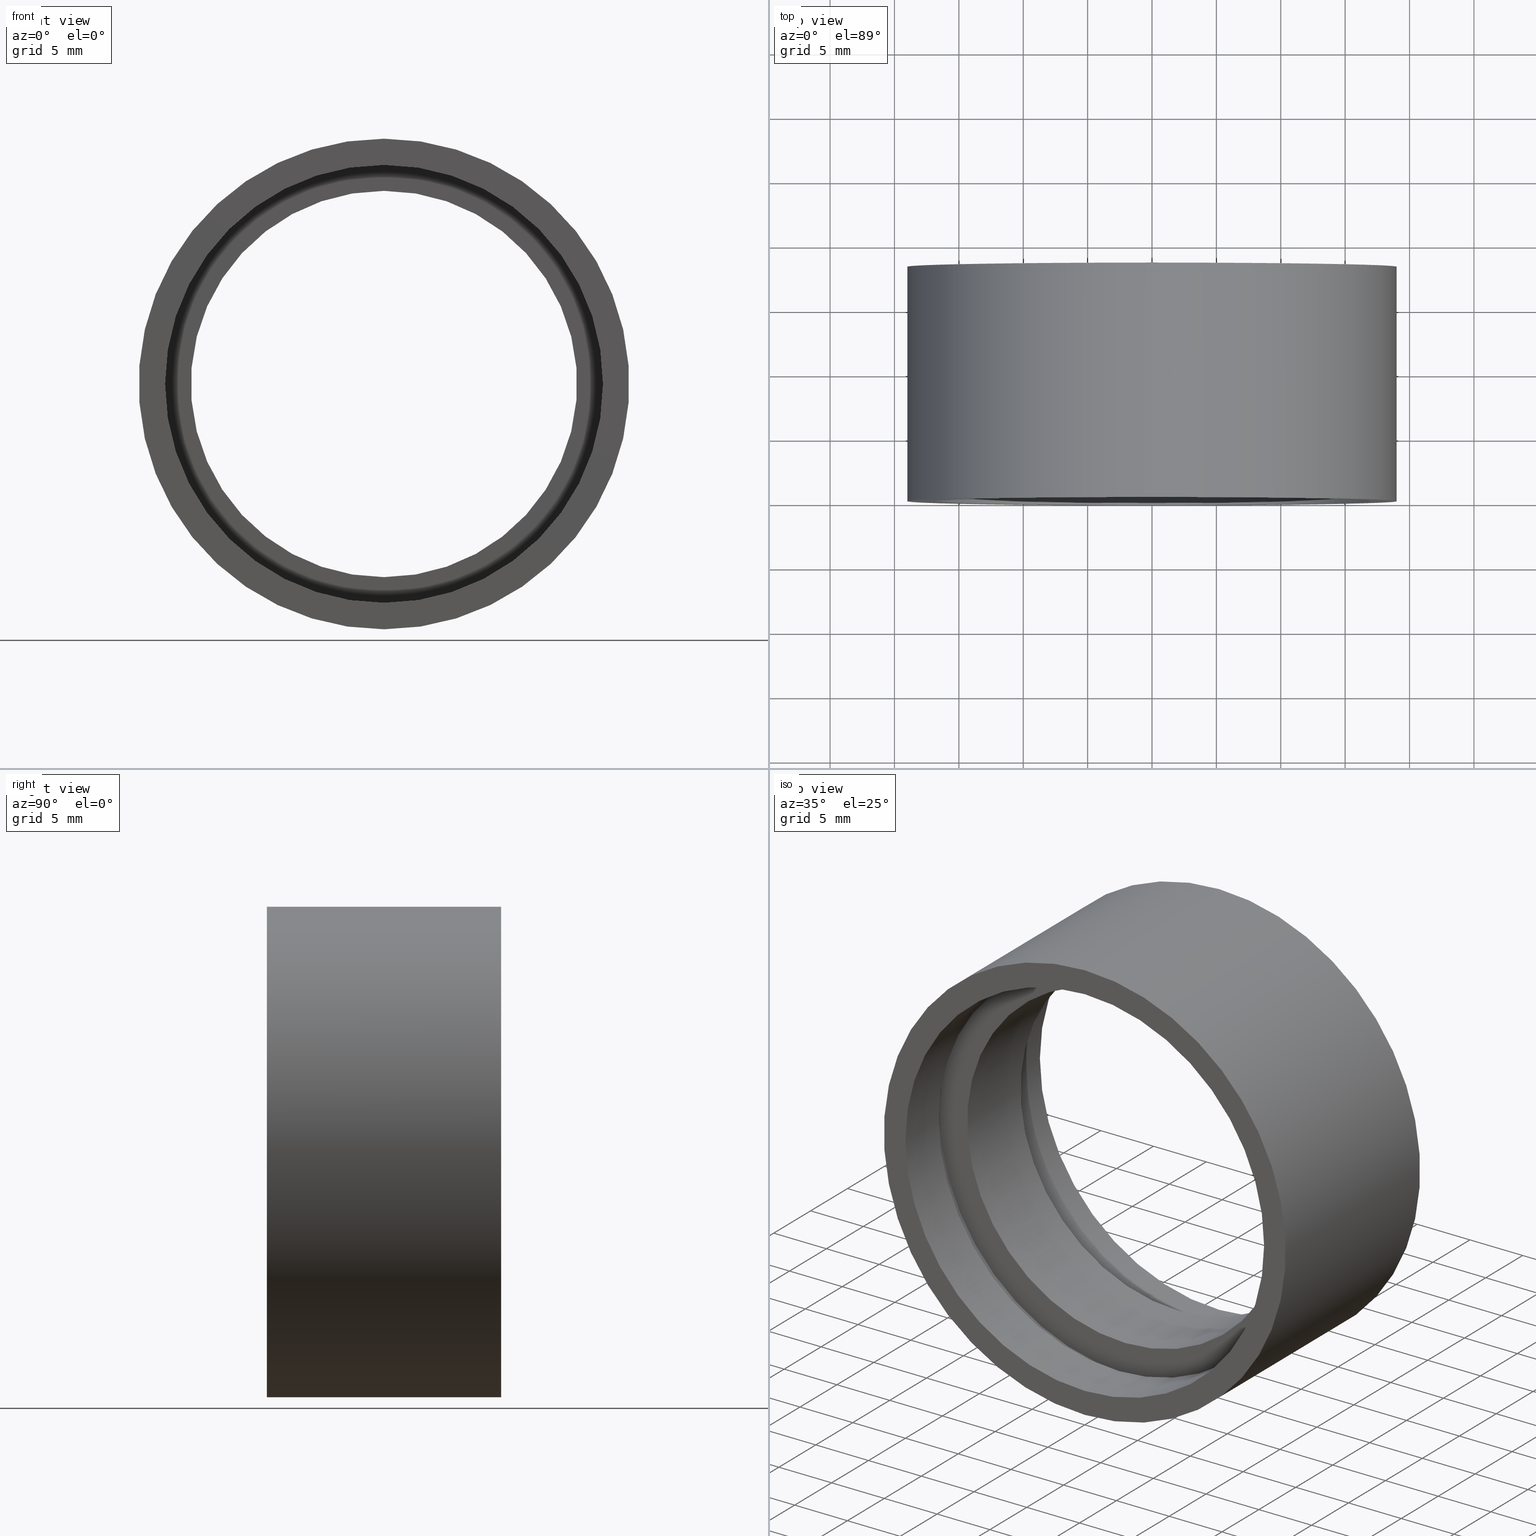
[diagram: canonical four-view strip — front | top / right | iso, engineering-drawing reading convention]
A machine part, canonical four-view strip (front | top / right | iso — engineering-drawing reading convention). The complete STEP part file that produces these views, byte-faithful:
ISO-10303-21;
HEADER;
FILE_DESCRIPTION (( 'STEP AP214' ),
    '1' );
FILE_NAME ('503043.STEP',
    '2019-09-06T03:19:14',
    ( '' ),
    ( '' ),
    'SwSTEP 2.0',
    'SolidWorks 2016',
    '' );
FILE_SCHEMA (( 'AUTOMOTIVE_DESIGN' ));
ENDSEC;

DATA;
#1 = CARTESIAN_POINT ( 'NONE',  ( 0.0000000000000000000, 4.499999999999976000, 17.60000000000002300 ) ) ;
#2 = AXIS2_PLACEMENT_3D ( 'NONE', #289, #621, #475 ) ;
#3 = ORIENTED_EDGE ( 'NONE', *, *, #343, .F. ) ;
#4 = VECTOR ( 'NONE', #358, 1000.000000000000000 ) ;
#5 = DIRECTION ( 'NONE',  ( 0.0000000000000000000, 0.0000000000000000000, 1.000000000000000000 ) ) ;
#6 = AXIS2_PLACEMENT_3D ( 'NONE', #35, #410, #84 ) ;
#7 = EDGE_CURVE ( 'NONE', #624, #437, #297, .T. ) ;
#8 = CLOSED_SHELL ( 'NONE', ( #529, #375, #27, #333, #190, #525, #285, #612, #574, #616, #335, #420, #329, #568, #91, #87, #144, #419 ) ) ;
#9 = LINE ( 'NONE', #519, #424 ) ;
#10 = ORIENTED_EDGE ( 'NONE', *, *, #581, .F. ) ;
#11 = AXIS2_PLACEMENT_3D ( 'NONE', #95, #140, #565 ) ;
#12 = DIRECTION ( 'NONE',  ( -0.0000000000000000000, 1.000000000000000000, -0.0000000000000000000 ) ) ;
#13 = VERTEX_POINT ( 'NONE', #301 ) ;
#14 = FILL_AREA_STYLE ('',( #143 ) ) ;
#15 = AXIS2_PLACEMENT_3D ( 'NONE', #501, #396, #590 ) ;
#16 = VECTOR ( 'NONE', #12, 1000.000000000000000 ) ;
#17 = UNCERTAINTY_MEASURE_WITH_UNIT (LENGTH_MEASURE( 1.000000000000000100E-005 ), #64, 'distance_accuracy_value', 'NONE');
#18 = CYLINDRICAL_SURFACE ( 'NONE', #510, 17.60000000000001900 ) ;
#19 = DIRECTION ( 'NONE',  ( 0.0000000000000000000, 0.0000000000000000000, 1.000000000000000000 ) ) ;
#20 = DIRECTION ( 'NONE',  ( 0.0000000000000000000, 0.0000000000000000000, 1.000000000000000000 ) ) ;
#21 = CYLINDRICAL_SURFACE ( 'NONE', #141, 19.05000000000002200 ) ;
#22 = SURFACE_SIDE_STYLE ('',( #167 ) ) ;
#23 = DIRECTION ( 'NONE',  ( -0.0000000000000000000, 1.000000000000000000, -0.0000000000000000000 ) ) ;
#24 = ORIENTED_EDGE ( 'NONE', *, *, #343, .T. ) ;
#25 = APPLICATION_CONTEXT ( 'automotive_design' ) ;
#26 = EDGE_CURVE ( 'NONE', #386, #594, #131, .T. ) ;
#27 = ADVANCED_FACE ( 'NONE', ( #451 ), #201, .F. ) ;
#28 = DIRECTION ( 'NONE',  ( 0.0000000000000000000, 0.0000000000000000000, 1.000000000000000000 ) ) ;
#29 =( NAMED_UNIT ( * ) PLANE_ANGLE_UNIT ( ) SI_UNIT ( $, .RADIAN. ) );
#30 = CARTESIAN_POINT ( 'NONE',  ( 0.0000000000000000000, 18.19999999999999600, 0.0000000000000000000 ) ) ;
#31 = FILL_AREA_STYLE ('',( #458 ) ) ;
#32 = VERTEX_POINT ( 'NONE', #595 ) ;
#33 = ORIENTED_EDGE ( 'NONE', *, *, #145, .T. ) ;
#34 = ORIENTED_EDGE ( 'NONE', *, *, #117, .F. ) ;
#35 = CARTESIAN_POINT ( 'NONE',  ( 0.0000000000000000000, 5.499999999999976900, 0.0000000000000000000 ) ) ;
#36 = STYLED_ITEM ( 'NONE', ( #73 ), #529 ) ;
#37 = CIRCLE ( 'NONE', #483, 17.00000000000002100 ) ;
#38 = DIRECTION ( 'NONE',  ( 0.0000000000000000000, -1.000000000000000000, 0.0000000000000000000 ) ) ;
#39 = CARTESIAN_POINT ( 'NONE',  ( 0.0000000000000000000, 161.3761669434274500, 0.0000000000000000000 ) ) ;
#40 = AXIS2_PLACEMENT_3D ( 'NONE', #221, #126, #509 ) ;
#41 = EDGE_LOOP ( 'NONE', ( #523, #75 ) ) ;
#42 = FACE_OUTER_BOUND ( 'NONE', #305, .T. ) ;
#43 = CARTESIAN_POINT ( 'NONE',  ( 17.00000000000002100, -1.527582111260147300E-014, 0.0000000000000000000 ) ) ;
#44 =( NAMED_UNIT ( * ) PLANE_ANGLE_UNIT ( ) SI_UNIT ( $, .RADIAN. ) );
#45 =( LENGTH_UNIT ( ) NAMED_UNIT ( * ) SI_UNIT ( .MILLI., .METRE. ) );
#46 = AXIS2_PLACEMENT_3D ( 'NONE', #527, #426, #617 ) ;
#47 = ORIENTED_EDGE ( 'NONE', *, *, #620, .T. ) ;
#48 = ORIENTED_EDGE ( 'NONE', *, *, #302, .T. ) ;
#49 = ORIENTED_EDGE ( 'NONE', *, *, #169, .T. ) ;
#50 = AXIS2_PLACEMENT_3D ( 'NONE', #214, #495, #356 ) ;
#51 = CIRCLE ( 'NONE', #464, 17.00000000000002100 ) ;
#52 = SURFACE_SIDE_STYLE ('',( #160 ) ) ;
#53 = UNCERTAINTY_MEASURE_WITH_UNIT (LENGTH_MEASURE( 1.000000000000000100E-005 ), #45, 'distance_accuracy_value', 'NONE');
#54 = ORIENTED_EDGE ( 'NONE', *, *, #611, .T. ) ;
#55 = PRESENTATION_STYLE_ASSIGNMENT (( #562 ) ) ;
#56 = FILL_AREA_STYLE_COLOUR ( '', #345 ) ;
#57 = EDGE_CURVE ( 'NONE', #206, #404, #240, .T. ) ;
#58 = CARTESIAN_POINT ( 'NONE',  ( 0.0000000000000000000, 12.69999999999998900, 0.0000000000000000000 ) ) ;
#59 = DIRECTION ( 'NONE',  ( -0.0000000000000000000, 1.000000000000000000, -0.0000000000000000000 ) ) ;
#60 = EDGE_CURVE ( 'NONE', #423, #215, #588, .T. ) ;
#61 = ORIENTED_EDGE ( 'NONE', *, *, #258, .T. ) ;
#62 = CIRCLE ( 'NONE', #446, 19.05000000000002200 ) ;
#63 = DIRECTION ( 'NONE',  ( 0.0000000000000000000, 0.0000000000000000000, 1.000000000000000000 ) ) ;
#64 =( LENGTH_UNIT ( ) NAMED_UNIT ( * ) SI_UNIT ( .MILLI., .METRE. ) );
#65 = DIRECTION ( 'NONE',  ( -0.0000000000000000000, 1.000000000000000000, 0.0000000000000000000 ) ) ;
#66 =( GEOMETRIC_REPRESENTATION_CONTEXT ( 3 ) GLOBAL_UNCERTAINTY_ASSIGNED_CONTEXT ( ( #473 ) ) GLOBAL_UNIT_ASSIGNED_CONTEXT ( ( #98, #153, #199 ) ) REPRESENTATION_CONTEXT ( 'NONE', 'WORKASPACE' ) );
#67 = DIRECTION ( 'NONE',  ( 0.0000000000000000000, -0.0000000000000000000, -1.000000000000000000 ) ) ;
#68 = AXIS2_PLACEMENT_3D ( 'NONE', #181, #271, #560 ) ;
#69 = EDGE_LOOP ( 'NONE', ( #381, #232 ) ) ;
#70 = PRESENTATION_STYLE_ASSIGNMENT (( #165 ) ) ;
#71 = DIRECTION ( 'NONE',  ( 0.0000000000000000000, -0.0000000000000000000, -1.000000000000000000 ) ) ;
#72 = DIRECTION ( 'NONE',  ( -0.0000000000000000000, 1.000000000000000000, -0.0000000000000000000 ) ) ;
#73 = PRESENTATION_STYLE_ASSIGNMENT (( #241 ) ) ;
#74 = EDGE_CURVE ( 'NONE', #215, #252, #62, .T. ) ;
#75 = ORIENTED_EDGE ( 'NONE', *, *, #99, .F. ) ;
#76 = ORIENTED_EDGE ( 'NONE', *, *, #226, .F. ) ;
#77 = SURFACE_STYLE_FILL_AREA ( #440 ) ;
#78 = DIRECTION ( 'NONE',  ( 0.0000000000000000000, 0.0000000000000000000, 1.000000000000000000 ) ) ;
#79 = AXIS2_PLACEMENT_3D ( 'NONE', #282, #336, #517 ) ;
#80 =( LENGTH_UNIT ( ) NAMED_UNIT ( * ) SI_UNIT ( .MILLI., .METRE. ) );
#81 = DIRECTION ( 'NONE',  ( -0.0000000000000000000, 1.000000000000000000, -0.0000000000000000000 ) ) ;
#82 = DIRECTION ( 'NONE',  ( -0.0000000000000000000, 1.000000000000000000, -0.0000000000000000000 ) ) ;
#83 = AXIS2_PLACEMENT_3D ( 'NONE', #116, #23, #20 ) ;
#84 = DIRECTION ( 'NONE',  ( 0.0000000000000000000, 0.0000000000000000000, 1.000000000000000000 ) ) ;
#85 = PLANE ( 'NONE',  #218 ) ;
#86 = EDGE_LOOP ( 'NONE', ( #191, #507 ) ) ;
#87 = ADVANCED_FACE ( 'NONE', ( #97 ), #387, .F. ) ;
#88 = CARTESIAN_POINT ( 'NONE',  ( 0.0000000000000000000, 161.3761669434274500, 0.0000000000000000000 ) ) ;
#89 = VECTOR ( 'NONE', #428, 1000.000000000000000 ) ;
#90 = CARTESIAN_POINT ( 'NONE',  ( 2.155378366499344400E-015, 161.3761669434274500, -17.60000000000002300 ) ) ;
#91 = ADVANCED_FACE ( 'NONE', ( #233, #139 ), #546, .F. ) ;
#92 = AXIS2_PLACEMENT_3D ( 'NONE', #173, #266, #67 ) ;
#93 = FILL_AREA_STYLE ('',( #528 ) ) ;
#94 = CIRCLE ( 'NONE', #534, 17.60000000000002300 ) ;
#95 = CARTESIAN_POINT ( 'NONE',  ( 0.0000000000000000000, 13.69999999999999000, 0.0000000000000000000 ) ) ;
#96 = ORIENTED_EDGE ( 'NONE', *, *, #169, .F. ) ;
#97 = FACE_OUTER_BOUND ( 'NONE', #371, .T. ) ;
#98 =( LENGTH_UNIT ( ) NAMED_UNIT ( * ) SI_UNIT ( .MILLI., .METRE. ) );
#99 = EDGE_CURVE ( 'NONE', #13, #118, #432, .T. ) ;
#100 = FACE_OUTER_BOUND ( 'NONE', #487, .T. ) ;
#101 = CARTESIAN_POINT ( 'NONE',  ( 0.0000000000000000000, 161.3761669434274500, 0.0000000000000000000 ) ) ;
#102 = LINE ( 'NONE', #405, #544 ) ;
#103 = CARTESIAN_POINT ( 'NONE',  ( 0.0000000000000000000, 4.499999999999976000, 17.00000000000002100 ) ) ;
#104 =( NAMED_UNIT ( * ) PLANE_ANGLE_UNIT ( ) SI_UNIT ( $, .RADIAN. ) );
#105 = CIRCLE ( 'NONE', #332, 17.60000000000002300 ) ;
#106 = EDGE_CURVE ( 'NONE', #156, #515, #307, .T. ) ;
#107 = CYLINDRICAL_SURFACE ( 'NONE', #347, 17.00000000000002100 ) ;
#108 = DIRECTION ( 'NONE',  ( 0.0000000000000000000, 0.0000000000000000000, 1.000000000000000000 ) ) ;
#109 = ORIENTED_EDGE ( 'NONE', *, *, #269, .T. ) ;
#110 = VECTOR ( 'NONE', #521, 1000.000000000000000 ) ;
#111 = ORIENTED_EDGE ( 'NONE', *, *, #166, .F. ) ;
#112 = ORIENTED_EDGE ( 'NONE', *, *, #480, .F. ) ;
#113 = FACE_BOUND ( 'NONE', #415, .T. ) ;
#114 = AXIS2_PLACEMENT_3D ( 'NONE', #88, #197, #578 ) ;
#115 = DIRECTION ( 'NONE',  ( 0.0000000000000000000, 0.0000000000000000000, 1.000000000000000000 ) ) ;
#116 = CARTESIAN_POINT ( 'NONE',  ( 0.0000000000000000000, -2.775557561562891400E-014, 0.0000000000000000000 ) ) ;
#117 = EDGE_CURVE ( 'NONE', #404, #594, #583, .T. ) ;
#118 = VERTEX_POINT ( 'NONE', #547 ) ;
#119 = FACE_OUTER_BOUND ( 'NONE', #351, .T. ) ;
#120 = LINE ( 'NONE', #532, #89 ) ;
#121 = CARTESIAN_POINT ( 'NONE',  ( 2.081899558550503000E-015, 18.19999999999999600, -17.00000000000002100 ) ) ;
#122 = UNCERTAINTY_MEASURE_WITH_UNIT (LENGTH_MEASURE( 1.000000000000000100E-005 ), #368, 'distance_accuracy_value', 'NONE');
#123 =( GEOMETRIC_REPRESENTATION_CONTEXT ( 3 ) GLOBAL_UNCERTAINTY_ASSIGNED_CONTEXT ( ( #592 ) ) GLOBAL_UNIT_ASSIGNED_CONTEXT ( ( #468, #373, #265 ) ) REPRESENTATION_CONTEXT ( 'NONE', 'WORKASPACE' ) );
#124 =( NAMED_UNIT ( * ) SI_UNIT ( $, .STERADIAN. ) SOLID_ANGLE_UNIT ( ) );
#125 = APPLICATION_PROTOCOL_DEFINITION ( 'draft international standard', 'automotive_design', 1998, #25 ) ;
#126 = DIRECTION ( 'NONE',  ( -0.0000000000000000000, 1.000000000000000000, -0.0000000000000000000 ) ) ;
#127 = EDGE_CURVE ( 'NONE', #32, #541, #261, .T. ) ;
#128 = ORIENTED_EDGE ( 'NONE', *, *, #134, .T. ) ;
#129 = CIRCLE ( 'NONE', #449, 17.00000000000002100 ) ;
#130 = ORIENTED_EDGE ( 'NONE', *, *, #269, .F. ) ;
#131 = CIRCLE ( 'NONE', #385, 15.00000000000001800 ) ;
#132 = CARTESIAN_POINT ( 'NONE',  ( 2.332952152375710400E-015, -2.775557561562891400E-014, -19.05000000000002200 ) ) ;
#133 = FACE_OUTER_BOUND ( 'NONE', #288, .T. ) ;
#134 = EDGE_CURVE ( 'NONE', #248, #423, #559, .T. ) ;
#135 = FILL_AREA_STYLE ('',( #555 ) ) ;
#136 = DIRECTION ( 'NONE',  ( -0.0000000000000000000, 1.000000000000000000, -0.0000000000000000000 ) ) ;
#137 = SURFACE_STYLE_USAGE ( .BOTH. , #319 ) ;
#138 = EDGE_LOOP ( 'NONE', ( #33, #394, #570, #481 ) ) ;
#139 = FACE_BOUND ( 'NONE', #183, .T. ) ;
#140 = DIRECTION ( 'NONE',  ( -0.0000000000000000000, 1.000000000000000000, -0.0000000000000000000 ) ) ;
#141 = AXIS2_PLACEMENT_3D ( 'NONE', #243, #155, #582 ) ;
#142 = CARTESIAN_POINT ( 'NONE',  ( 0.0000000000000000000, 5.499999999999976900, 17.60000000000002300 ) ) ;
#143 = FILL_AREA_STYLE_COLOUR ( '', #608 ) ;
#144 = ADVANCED_FACE ( 'NONE', ( #497, #119 ), #493, .F. ) ;
#145 = EDGE_CURVE ( 'NONE', #423, #248, #516, .T. ) ;
#146 = PLANE ( 'NONE',  #245 ) ;
#147 = DIRECTION ( 'NONE',  ( 0.0000000000000000000, 0.0000000000000000000, 1.000000000000000000 ) ) ;
#148 = VERTEX_POINT ( 'NONE', #175 ) ;
#149 = CIRCLE ( 'NONE', #6, 15.00000000000001800 ) ;
#150 = ORIENTED_EDGE ( 'NONE', *, *, #106, .T. ) ;
#151 =( NAMED_UNIT ( * ) SI_UNIT ( $, .STERADIAN. ) SOLID_ANGLE_UNIT ( ) );
#152 = DIRECTION ( 'NONE',  ( -0.0000000000000000000, 1.000000000000000000, -0.0000000000000000000 ) ) ;
#153 =( NAMED_UNIT ( * ) PLANE_ANGLE_UNIT ( ) SI_UNIT ( $, .RADIAN. ) );
#154 = MECHANICAL_DESIGN_GEOMETRIC_PRESENTATION_REPRESENTATION (  '', ( #36 ), #230 ) ;
#155 = DIRECTION ( 'NONE',  ( -0.0000000000000000000, 1.000000000000000000, -0.0000000000000000000 ) ) ;
#156 = VERTEX_POINT ( 'NONE', #259 ) ;
#157 = LINE ( 'NONE', #613, #354 ) ;
#158 = SURFACE_STYLE_USAGE ( .BOTH. , #244 ) ;
#159 = AXIS2_PLACEMENT_3D ( 'NONE', #448, #72, #63 ) ;
#160 = SURFACE_STYLE_FILL_AREA ( #93 ) ;
#161 =( GEOMETRIC_REPRESENTATION_CONTEXT ( 3 ) GLOBAL_UNCERTAINTY_ASSIGNED_CONTEXT ( ( #491 ) ) GLOBAL_UNIT_ASSIGNED_CONTEXT ( ( #80, #29, #124 ) ) REPRESENTATION_CONTEXT ( 'NONE', 'WORKASPACE' ) );
#162 = CARTESIAN_POINT ( 'NONE',  ( 0.0000000000000000000, 12.69999999999998900, 0.0000000000000000000 ) ) ;
#163 = VERTEX_POINT ( 'NONE', #121 ) ;
#164 = CYLINDRICAL_SURFACE ( 'NONE', #40, 17.00000000000002100 ) ;
#165 = SURFACE_STYLE_USAGE ( .BOTH. , #438 ) ;
#166 = EDGE_CURVE ( 'NONE', #252, #215, #216, .T. ) ;
#167 = SURFACE_STYLE_FILL_AREA ( #31 ) ;
#168 = DIRECTION ( 'NONE',  ( -0.0000000000000000000, 1.000000000000000000, -0.0000000000000000000 ) ) ;
#169 = EDGE_CURVE ( 'NONE', #273, #170, #105, .T. ) ;
#170 = VERTEX_POINT ( 'NONE', #461 ) ;
#171 = FACE_OUTER_BOUND ( 'NONE', #321, .T. ) ;
#172 = STYLED_ITEM ( 'NONE', ( #298 ), #419 ) ;
#173 = CARTESIAN_POINT ( 'NONE',  ( 17.00000000000002100, 4.499999999999984000, 0.0000000000000000000 ) ) ;
#174 = CARTESIAN_POINT ( 'NONE',  ( 0.0000000000000000000, 5.499999999999976900, 0.0000000000000000000 ) ) ;
#175 = CARTESIAN_POINT ( 'NONE',  ( 2.081899558550503000E-015, 4.499999999999976000, -17.00000000000002100 ) ) ;
#176 = EDGE_CURVE ( 'NONE', #470, #163, #157, .T. ) ;
#177 = ORIENTED_EDGE ( 'NONE', *, *, #226, .T. ) ;
#178 = FACE_OUTER_BOUND ( 'NONE', #431, .T. ) ;
#179 = SHAPE_DEFINITION_REPRESENTATION ( #586, #395 ) ;
#180 = PRESENTATION_STYLE_ASSIGNMENT (( #137 ) ) ;
#181 = CARTESIAN_POINT ( 'NONE',  ( 0.0000000000000000000, 12.69999999999998900, 0.0000000000000000000 ) ) ;
#182 = STYLED_ITEM ( 'NONE', ( #572 ), #568 ) ;
#183 = EDGE_LOOP ( 'NONE', ( #278, #260 ) ) ;
#184 = ORIENTED_EDGE ( 'NONE', *, *, #596, .T. ) ;
#185 = ORIENTED_EDGE ( 'NONE', *, *, #585, .T. ) ;
#186 = CARTESIAN_POINT ( 'NONE',  ( 2.081899558550503000E-015, 161.3761669434274500, -17.00000000000002100 ) ) ;
#187 = CARTESIAN_POINT ( 'NONE',  ( 0.0000000000000000000, 13.69999999999999000, 17.00000000000002100 ) ) ;
#188 = CYLINDRICAL_SURFACE ( 'NONE', #563, 17.00000000000002100 ) ;
#189 = AXIS2_PLACEMENT_3D ( 'NONE', #538, #65, #257 ) ;
#190 = ADVANCED_FACE ( 'NONE', ( #42 ), #164, .F. ) ;
#191 = ORIENTED_EDGE ( 'NONE', *, *, #258, .F. ) ;
#192 = DIRECTION ( 'NONE',  ( -0.0000000000000000000, 1.000000000000000000, -0.0000000000000000000 ) ) ;
#193 = MECHANICAL_DESIGN_GEOMETRIC_PRESENTATION_REPRESENTATION (  '', ( #548 ), #66 ) ;
#194 = CARTESIAN_POINT ( 'NONE',  ( 0.0000000000000000000, 12.69999999999998900, 0.0000000000000000000 ) ) ;
#195 =( NAMED_UNIT ( * ) SI_UNIT ( $, .STERADIAN. ) SOLID_ANGLE_UNIT ( ) );
#196 = AXIS2_PLACEMENT_3D ( 'NONE', #403, #168, #212 ) ;
#197 = DIRECTION ( 'NONE',  ( -0.0000000000000000000, 1.000000000000000000, -0.0000000000000000000 ) ) ;
#198 = DIRECTION ( 'NONE',  ( -0.0000000000000000000, 1.000000000000000000, -0.0000000000000000000 ) ) ;
#199 =( NAMED_UNIT ( * ) SI_UNIT ( $, .STERADIAN. ) SOLID_ANGLE_UNIT ( ) );
#200 = EDGE_CURVE ( 'NONE', #506, #148, #253, .T. ) ;
#201 = CYLINDRICAL_SURFACE ( 'NONE', #425, 15.00000000000001800 ) ;
#202 = CARTESIAN_POINT ( 'NONE',  ( 0.0000000000000000000, 161.3761669434274500, 15.00000000000001800 ) ) ;
#203 = MECHANICAL_DESIGN_GEOMETRIC_PRESENTATION_REPRESENTATION (  '', ( #172 ), #316 ) ;
#204 = ORIENTED_EDGE ( 'NONE', *, *, #585, .F. ) ;
#205 = EDGE_CURVE ( 'NONE', #515, #156, #94, .T. ) ;
#206 = VERTEX_POINT ( 'NONE', #512 ) ;
#207 = ORIENTED_EDGE ( 'NONE', *, *, #596, .F. ) ;
#208 = DIRECTION ( 'NONE',  ( -0.0000000000000000000, 1.000000000000000000, -0.0000000000000000000 ) ) ;
#209 = AXIS2_PLACEMENT_3D ( 'NONE', #283, #564, #615 ) ;
#210 = SURFACE_STYLE_FILL_AREA ( #14 ) ;
#211 = DIRECTION ( 'NONE',  ( -0.0000000000000000000, 1.000000000000000000, -0.0000000000000000000 ) ) ;
#212 = DIRECTION ( 'NONE',  ( 0.0000000000000000000, 0.0000000000000000000, 1.000000000000000000 ) ) ;
#213 =( GEOMETRIC_REPRESENTATION_CONTEXT ( 3 ) GLOBAL_UNCERTAINTY_ASSIGNED_CONTEXT ( ( #122 ) ) GLOBAL_UNIT_ASSIGNED_CONTEXT ( ( #368, #416, #220 ) ) REPRESENTATION_CONTEXT ( 'NONE', 'WORKASPACE' ) );
#214 = CARTESIAN_POINT ( 'NONE',  ( 0.0000000000000000000, 4.499999999999976000, 0.0000000000000000000 ) ) ;
#215 = VERTEX_POINT ( 'NONE', #315 ) ;
#216 = CIRCLE ( 'NONE', #453, 19.05000000000002200 ) ;
#217 = CARTESIAN_POINT ( 'NONE',  ( 0.0000000000000000000, 5.499999999999976900, 0.0000000000000000000 ) ) ;
#218 = AXIS2_PLACEMENT_3D ( 'NONE', #376, #38, #284 ) ;
#219 = DIRECTION ( 'NONE',  ( 0.0000000000000000000, 0.0000000000000000000, 1.000000000000000000 ) ) ;
#220 =( NAMED_UNIT ( * ) SI_UNIT ( $, .STERADIAN. ) SOLID_ANGLE_UNIT ( ) );
#221 = CARTESIAN_POINT ( 'NONE',  ( 0.0000000000000000000, 161.3761669434274500, 0.0000000000000000000 ) ) ;
#222 = EDGE_CURVE ( 'NONE', #404, #206, #149, .T. ) ;
#223 = ORIENTED_EDGE ( 'NONE', *, *, #200, .T. ) ;
#224 = ORIENTED_EDGE ( 'NONE', *, *, #543, .T. ) ;
#225 = CIRCLE ( 'NONE', #250, 17.60000000000001900 ) ;
#226 = EDGE_CURVE ( 'NONE', #594, #386, #303, .T. ) ;
#227 = DIRECTION ( 'NONE',  ( 0.0000000000000000000, 0.0000000000000000000, 1.000000000000000000 ) ) ;
#228 = CARTESIAN_POINT ( 'NONE',  ( 0.0000000000000000000, 4.499999999999976000, 0.0000000000000000000 ) ) ;
#229 = CARTESIAN_POINT ( 'NONE',  ( 0.0000000000000000000, 4.499999999999976000, 0.0000000000000000000 ) ) ;
#230 =( GEOMETRIC_REPRESENTATION_CONTEXT ( 3 ) GLOBAL_UNCERTAINTY_ASSIGNED_CONTEXT ( ( #580 ) ) GLOBAL_UNIT_ASSIGNED_CONTEXT ( ( #389, #104, #195 ) ) REPRESENTATION_CONTEXT ( 'NONE', 'WORKASPACE' ) );
#231 = DIRECTION ( 'NONE',  ( -0.0000000000000000000, 1.000000000000000000, -0.0000000000000000000 ) ) ;
#232 = ORIENTED_EDGE ( 'NONE', *, *, #166, .T. ) ;
#233 = FACE_OUTER_BOUND ( 'NONE', #412, .T. ) ;
#234 = COLOUR_RGB ( '',1.000000000000000000, 1.000000000000000000, 1.000000000000000000 ) ;
#235 = EDGE_CURVE ( 'NONE', #32, #506, #457, .T. ) ;
#236 = CARTESIAN_POINT ( 'NONE',  ( 0.0000000000000000000, 12.69999999999998900, 15.00000000000001800 ) ) ;
#237 = LINE ( 'NONE', #90, #110 ) ;
#238 = DIRECTION ( 'NONE',  ( 0.0000000000000000000, 0.0000000000000000000, 1.000000000000000000 ) ) ;
#239 = ORIENTED_EDGE ( 'NONE', *, *, #222, .F. ) ;
#240 = CIRCLE ( 'NONE', #522, 15.00000000000001800 ) ;
#241 = SURFACE_STYLE_USAGE ( .BOTH. , #52 ) ;
#242 = LINE ( 'NONE', #202, #280 ) ;
#243 = CARTESIAN_POINT ( 'NONE',  ( 0.0000000000000000000, 161.3761669434274500, 0.0000000000000000000 ) ) ;
#244 = SURFACE_SIDE_STYLE ('',( #597 ) ) ;
#245 = AXIS2_PLACEMENT_3D ( 'NONE', #43, #467, #569 ) ;
#246 = CARTESIAN_POINT ( 'NONE',  ( 2.081899558550503000E-015, -2.775557561562891400E-014, -17.00000000000002100 ) ) ;
#247 = EDGE_CURVE ( 'NONE', #470, #622, #129, .T. ) ;
#248 = VERTEX_POINT ( 'NONE', #132 ) ;
#249 = ORIENTED_EDGE ( 'NONE', *, *, #7, .T. ) ;
#250 = AXIS2_PLACEMENT_3D ( 'NONE', #194, #471, #330 ) ;
#251 = DIRECTION ( 'NONE',  ( -0.0000000000000000000, 1.000000000000000000, -0.0000000000000000000 ) ) ;
#252 = VERTEX_POINT ( 'NONE', #411 ) ;
#253 = LINE ( 'NONE', #186, #524 ) ;
#254 = CYLINDRICAL_SURFACE ( 'NONE', #290, 17.60000000000001900 ) ;
#255 = ORIENTED_EDGE ( 'NONE', *, *, #247, .T. ) ;
#256 = PRODUCT_DEFINITION_FORMATION_WITH_SPECIFIED_SOURCE ( '�κ�', '', #466, .NOT_KNOWN. ) ;
#257 = DIRECTION ( 'NONE',  ( 0.0000000000000000000, 0.0000000000000000000, 1.000000000000000000 ) ) ;
#258 = EDGE_CURVE ( 'NONE', #541, #148, #587, .T. ) ;
#259 = CARTESIAN_POINT ( 'NONE',  ( 2.155378366499344400E-015, 4.499999999999976000, -17.60000000000002300 ) ) ;
#260 = ORIENTED_EDGE ( 'NONE', *, *, #222, .T. ) ;
#261 = LINE ( 'NONE', #399, #4 ) ;
#262 =( NAMED_UNIT ( * ) PLANE_ANGLE_UNIT ( ) SI_UNIT ( $, .RADIAN. ) );
#263 =( NAMED_UNIT ( * ) PLANE_ANGLE_UNIT ( ) SI_UNIT ( $, .RADIAN. ) );
#264 = PRESENTATION_LAYER_ASSIGNMENT (  '', '', ( #548 ) ) ;
#265 =( NAMED_UNIT ( * ) SI_UNIT ( $, .STERADIAN. ) SOLID_ANGLE_UNIT ( ) );
#266 = DIRECTION ( 'NONE',  ( 0.0000000000000000000, -1.000000000000000000, 0.0000000000000000000 ) ) ;
#267 = DIRECTION ( 'NONE',  ( -0.0000000000000000000, 1.000000000000000000, -0.0000000000000000000 ) ) ;
#268 = DIRECTION ( 'NONE',  ( 0.0000000000000000000, 0.0000000000000000000, 1.000000000000000000 ) ) ;
#269 = EDGE_CURVE ( 'NONE', #437, #118, #9, .T. ) ;
#270 = DIRECTION ( 'NONE',  ( 0.0000000000000000000, -1.000000000000000000, 0.0000000000000000000 ) ) ;
#271 = DIRECTION ( 'NONE',  ( -0.0000000000000000000, 1.000000000000000000, -0.0000000000000000000 ) ) ;
#272 = ORIENTED_EDGE ( 'NONE', *, *, #205, .F. ) ;
#273 = VERTEX_POINT ( 'NONE', #142 ) ;
#274 = DIRECTION ( 'NONE',  ( -0.0000000000000000000, 1.000000000000000000, -0.0000000000000000000 ) ) ;
#275 = PRESENTATION_STYLE_ASSIGNMENT (( #406 ) ) ;
#276 = CARTESIAN_POINT ( 'NONE',  ( 0.0000000000000000000, -2.775557561562891400E-014, 0.0000000000000000000 ) ) ;
#277 = AXIS2_PLACEMENT_3D ( 'NONE', #174, #499, #503 ) ;
#278 = ORIENTED_EDGE ( 'NONE', *, *, #57, .T. ) ;
#279 = CARTESIAN_POINT ( 'NONE',  ( 0.0000000000000000000, 13.69999999999999000, 0.0000000000000000000 ) ) ;
#280 = VECTOR ( 'NONE', #292, 1000.000000000000000 ) ;
#281 = MECHANICAL_DESIGN_GEOMETRIC_PRESENTATION_REPRESENTATION (  '', ( #372 ), #436 ) ;
#282 = CARTESIAN_POINT ( 'NONE',  ( 0.0000000000000000000, 161.3761669434274500, 0.0000000000000000000 ) ) ;
#283 = CARTESIAN_POINT ( 'NONE',  ( 0.0000000000000000000, 4.499999999999976000, 0.0000000000000000000 ) ) ;
#284 = DIRECTION ( 'NONE',  ( 0.0000000000000000000, -0.0000000000000000000, -1.000000000000000000 ) ) ;
#285 = ADVANCED_FACE ( 'NONE', ( #178, #505 ), #146, .F. ) ;
#286 = CARTESIAN_POINT ( 'NONE',  ( 2.155378366499344000E-015, 161.3761669434274500, -17.60000000000001900 ) ) ;
#287 = PRESENTATION_LAYER_ASSIGNMENT (  '', '', ( #172 ) ) ;
#288 = EDGE_LOOP ( 'NONE', ( #10, #223, #47, #459 ) ) ;
#289 = CARTESIAN_POINT ( 'NONE',  ( 0.0000000000000000000, 13.69999999999999000, 0.0000000000000000000 ) ) ;
#290 = AXIS2_PLACEMENT_3D ( 'NONE', #421, #575, #238 ) ;
#291 = DIRECTION ( 'NONE',  ( -0.0000000000000000000, 1.000000000000000000, -0.0000000000000000000 ) ) ;
#292 = DIRECTION ( 'NONE',  ( -0.0000000000000000000, 1.000000000000000000, -0.0000000000000000000 ) ) ;
#293 = FILL_AREA_STYLE_COLOUR ( '', #234 ) ;
#294 = EDGE_CURVE ( 'NONE', #624, #13, #623, .T. ) ;
#295 = ORIENTED_EDGE ( 'NONE', *, *, #566, .F. ) ;
#296 = EDGE_LOOP ( 'NONE', ( #364, #489, #603, #337 ) ) ;
#297 = CIRCLE ( 'NONE', #469, 17.60000000000001900 ) ;
#298 = PRESENTATION_STYLE_ASSIGNMENT (( #334 ) ) ;
#299 = AXIS2_PLACEMENT_3D ( 'NONE', #422, #231, #324 ) ;
#300 = DIRECTION ( 'NONE',  ( -0.0000000000000000000, 1.000000000000000000, -0.0000000000000000000 ) ) ;
#301 = CARTESIAN_POINT ( 'NONE',  ( 2.155378366499344000E-015, 13.69999999999999000, -17.60000000000001900 ) ) ;
#302 = EDGE_CURVE ( 'NONE', #622, #470, #363, .T. ) ;
#303 = CIRCLE ( 'NONE', #68, 15.00000000000001800 ) ;
#304 = CARTESIAN_POINT ( 'NONE',  ( 0.0000000000000000000, 161.3761669434274500, 0.0000000000000000000 ) ) ;
#305 = EDGE_LOOP ( 'NONE', ( #571, #378, #184, #204 ) ) ;
#306 = EDGE_LOOP ( 'NONE', ( #24, #249 ) ) ;
#307 = CIRCLE ( 'NONE', #50, 17.60000000000002300 ) ;
#308 = STYLED_ITEM ( 'NONE', ( #275 ), #395 ) ;
#309 = CARTESIAN_POINT ( 'NONE',  ( 1.836970198721032000E-015, 161.3761669434274500, -15.00000000000001800 ) ) ;
#310 = CIRCLE ( 'NONE', #277, 17.60000000000002300 ) ;
#311 = PRESENTATION_LAYER_ASSIGNMENT (  '', '', ( #359 ) ) ;
#312 = EDGE_LOOP ( 'NONE', ( #456, #320, #602, #130 ) ) ;
#313 =( GEOMETRIC_REPRESENTATION_CONTEXT ( 3 ) GLOBAL_UNCERTAINTY_ASSIGNED_CONTEXT ( ( #567 ) ) GLOBAL_UNIT_ASSIGNED_CONTEXT ( ( #472, #561, #610 ) ) REPRESENTATION_CONTEXT ( 'NONE', 'WORKASPACE' ) );
#314 = FACE_OUTER_BOUND ( 'NONE', #450, .T. ) ;
#315 = CARTESIAN_POINT ( 'NONE',  ( 0.0000000000000000000, 18.19999999999999600, 19.05000000000002200 ) ) ;
#316 =( GEOMETRIC_REPRESENTATION_CONTEXT ( 3 ) GLOBAL_UNCERTAINTY_ASSIGNED_CONTEXT ( ( #53 ) ) GLOBAL_UNIT_ASSIGNED_CONTEXT ( ( #45, #44, #151 ) ) REPRESENTATION_CONTEXT ( 'NONE', 'WORKASPACE' ) );
#317 = SURFACE_STYLE_USAGE ( .BOTH. , #22 ) ;
#318 = ORIENTED_EDGE ( 'NONE', *, *, #176, .F. ) ;
#319 = SURFACE_SIDE_STYLE ('',( #366 ) ) ;
#320 = ORIENTED_EDGE ( 'NONE', *, *, #294, .T. ) ;
#321 = EDGE_LOOP ( 'NONE', ( #370, #128, #414, #111 ) ) ;
#322 = EDGE_CURVE ( 'NONE', #156, #170, #237, .T. ) ;
#323 = LINE ( 'NONE', #531, #400 ) ;
#324 = DIRECTION ( 'NONE',  ( 0.0000000000000000000, 0.0000000000000000000, 1.000000000000000000 ) ) ;
#325 = DIRECTION ( 'NONE',  ( -0.0000000000000000000, 1.000000000000000000, -0.0000000000000000000 ) ) ;
#326 = CARTESIAN_POINT ( 'NONE',  ( 0.0000000000000000000, 18.19999999999999600, 0.0000000000000000000 ) ) ;
#327 = PRESENTATION_LAYER_ASSIGNMENT (  '', '', ( #618 ) ) ;
#328 = CARTESIAN_POINT ( 'NONE',  ( 0.0000000000000000000, 0.0000000000000000000, 0.0000000000000000000 ) ) ;
#329 = ADVANCED_FACE ( 'NONE', ( #379, #488 ), #85, .F. ) ;
#330 = DIRECTION ( 'NONE',  ( 0.0000000000000000000, 0.0000000000000000000, 1.000000000000000000 ) ) ;
#331 = UNCERTAINTY_MEASURE_WITH_UNIT (LENGTH_MEASURE( 1.000000000000000100E-005 ), #486, 'distance_accuracy_value', 'NONE');
#332 = AXIS2_PLACEMENT_3D ( 'NONE', #605, #81, #78 ) ;
#333 = ADVANCED_FACE ( 'NONE', ( #417 ), #254, .F. ) ;
#334 = SURFACE_STYLE_USAGE ( .BOTH. , #573 ) ;
#335 = ADVANCED_FACE ( 'NONE', ( #482, #113 ), #427, .F. ) ;
#336 = DIRECTION ( 'NONE',  ( -0.0000000000000000000, 1.000000000000000000, -0.0000000000000000000 ) ) ;
#337 = ORIENTED_EDGE ( 'NONE', *, *, #543, .F. ) ;
#338 = EDGE_LOOP ( 'NONE', ( #239, #593, #177, #112 ) ) ;
#339 = DIRECTION ( 'NONE',  ( 0.0000000000000000000, 0.0000000000000000000, 1.000000000000000000 ) ) ;
#340 = SURFACE_STYLE_FILL_AREA ( #619 ) ;
#341 = PRESENTATION_LAYER_ASSIGNMENT (  '', '', ( #308 ) ) ;
#342 = FACE_OUTER_BOUND ( 'NONE', #614, .T. ) ;
#343 = EDGE_CURVE ( 'NONE', #437, #624, #225, .T. ) ;
#344 = ORIENTED_EDGE ( 'NONE', *, *, #322, .F. ) ;
#345 = COLOUR_RGB ( '',1.000000000000000000, 1.000000000000000000, 1.000000000000000000 ) ;
#346 = AXIS2_PLACEMENT_3D ( 'NONE', #408, #270, #71 ) ;
#347 = AXIS2_PLACEMENT_3D ( 'NONE', #433, #526, #479 ) ;
#348 = EDGE_LOOP ( 'NONE', ( #504, #207 ) ) ;
#349 = COLOUR_RGB ( '',1.000000000000000000, 1.000000000000000000, 1.000000000000000000 ) ;
#350 = ORIENTED_EDGE ( 'NONE', *, *, #57, .F. ) ;
#351 = EDGE_LOOP ( 'NONE', ( #535, #150 ) ) ;
#352 = PRESENTATION_LAYER_ASSIGNMENT (  '', '', ( #372 ) ) ;
#353 =( NAMED_UNIT ( * ) SI_UNIT ( $, .STERADIAN. ) SOLID_ANGLE_UNIT ( ) );
#354 = VECTOR ( 'NONE', #601, 1000.000000000000000 ) ;
#355 = MECHANICAL_DESIGN_GEOMETRIC_PRESENTATION_REPRESENTATION (  '', ( #618 ), #313 ) ;
#356 = DIRECTION ( 'NONE',  ( 0.0000000000000000000, 0.0000000000000000000, 1.000000000000000000 ) ) ;
#357 = DIRECTION ( 'NONE',  ( -0.0000000000000000000, 1.000000000000000000, -0.0000000000000000000 ) ) ;
#358 = DIRECTION ( 'NONE',  ( -0.0000000000000000000, 1.000000000000000000, -0.0000000000000000000 ) ) ;
#359 = STYLED_ITEM ( 'NONE', ( #55 ), #190 ) ;
#360 = CARTESIAN_POINT ( 'NONE',  ( 0.0000000000000000000, -2.775557561562891400E-014, 0.0000000000000000000 ) ) ;
#361 = CARTESIAN_POINT ( 'NONE',  ( 1.836970198721032000E-015, 12.69999999999998900, -15.00000000000001800 ) ) ;
#362 = ORIENTED_EDGE ( 'NONE', *, *, #26, .F. ) ;
#363 = CIRCLE ( 'NONE', #11, 17.00000000000002100 ) ;
#364 = ORIENTED_EDGE ( 'NONE', *, *, #106, .F. ) ;
#365 = FILL_AREA_STYLE ('',( #455 ) ) ;
#366 = SURFACE_STYLE_FILL_AREA ( #365 ) ;
#367 = DIRECTION ( 'NONE',  ( -0.0000000000000000000, 1.000000000000000000, -0.0000000000000000000 ) ) ;
#368 =( LENGTH_UNIT ( ) NAMED_UNIT ( * ) SI_UNIT ( .MILLI., .METRE. ) );
#369 = MECHANICAL_DESIGN_GEOMETRIC_PRESENTATION_REPRESENTATION (  '', ( #308 ), #434 ) ;
#370 = ORIENTED_EDGE ( 'NONE', *, *, #485, .F. ) ;
#371 = EDGE_LOOP ( 'NONE', ( #344, #272, #224, #49 ) ) ;
#372 = STYLED_ITEM ( 'NONE', ( #70 ), #27 ) ;
#373 =( NAMED_UNIT ( * ) PLANE_ANGLE_UNIT ( ) SI_UNIT ( $, .RADIAN. ) );
#374 = CARTESIAN_POINT ( 'NONE',  ( 1.836970198721032000E-015, 5.499999999999976900, -15.00000000000001800 ) ) ;
#375 = ADVANCED_FACE ( 'NONE', ( #460 ), #604, .F. ) ;
#376 = CARTESIAN_POINT ( 'NONE',  ( 15.00000000000001800, 12.69999999999997800, 0.0000000000000000000 ) ) ;
#377 = PRESENTATION_LAYER_ASSIGNMENT (  '', '', ( #36 ) ) ;
#378 = ORIENTED_EDGE ( 'NONE', *, *, #176, .T. ) ;
#379 = FACE_BOUND ( 'NONE', #442, .T. ) ;
#380 = ORIENTED_EDGE ( 'NONE', *, *, #26, .T. ) ;
#381 = ORIENTED_EDGE ( 'NONE', *, *, #74, .T. ) ;
#382 = PRODUCT_DEFINITION ( 'δ֪', '', #256, #554 ) ;
#383 = DIRECTION ( 'NONE',  ( -0.0000000000000000000, 1.000000000000000000, -0.0000000000000000000 ) ) ;
#384 = FILL_AREA_STYLE ('',( #293 ) ) ;
#385 = AXIS2_PLACEMENT_3D ( 'NONE', #162, #251, #108 ) ;
#386 = VERTEX_POINT ( 'NONE', #236 ) ;
#387 = CYLINDRICAL_SURFACE ( 'NONE', #196, 17.60000000000002300 ) ;
#388 = COLOUR_RGB ( '',1.000000000000000000, 1.000000000000000000, 1.000000000000000000 ) ;
#389 =( LENGTH_UNIT ( ) NAMED_UNIT ( * ) SI_UNIT ( .MILLI., .METRE. ) );
#390 = CIRCLE ( 'NONE', #299, 17.00000000000002100 ) ;
#391 = AXIS2_PLACEMENT_3D ( 'NONE', #328, #19, #545 ) ;
#392 = MECHANICAL_DESIGN_GEOMETRIC_PRESENTATION_REPRESENTATION (  '', ( #359 ), #213 ) ;
#393 = ORIENTED_EDGE ( 'NONE', *, *, #127, .T. ) ;
#394 = ORIENTED_EDGE ( 'NONE', *, *, #485, .T. ) ;
#395 = ADVANCED_BREP_SHAPE_REPRESENTATION ( '503043', ( #549, #391 ), #123 ) ;
#396 = DIRECTION ( 'NONE',  ( -0.0000000000000000000, 1.000000000000000000, -0.0000000000000000000 ) ) ;
#397 = AXIS2_PLACEMENT_3D ( 'NONE', #465, #418, #227 ) ;
#398 = ORIENTED_EDGE ( 'NONE', *, *, #235, .F. ) ;
#399 = CARTESIAN_POINT ( 'NONE',  ( 0.0000000000000000000, 161.3761669434274500, 17.00000000000002100 ) ) ;
#400 = VECTOR ( 'NONE', #198, 1000.000000000000000 ) ;
#401 = SURFACE_SIDE_STYLE ('',( #210 ) ) ;
#402 = DIRECTION ( 'NONE',  ( 0.0000000000000000000, 0.0000000000000000000, 1.000000000000000000 ) ) ;
#403 = CARTESIAN_POINT ( 'NONE',  ( 0.0000000000000000000, 161.3761669434274500, 0.0000000000000000000 ) ) ;
#404 = VERTEX_POINT ( 'NONE', #374 ) ;
#405 = CARTESIAN_POINT ( 'NONE',  ( 0.0000000000000000000, 161.3761669434274500, 17.00000000000002100 ) ) ;
#406 = SURFACE_STYLE_USAGE ( .BOTH. , #401 ) ;
#407 = DIRECTION ( 'NONE',  ( -0.0000000000000000000, 1.000000000000000000, -0.0000000000000000000 ) ) ;
#408 = CARTESIAN_POINT ( 'NONE',  ( 17.00000000000002100, 18.19999999999998500, 0.0000000000000000000 ) ) ;
#409 = CIRCLE ( 'NONE', #209, 17.00000000000002100 ) ;
#410 = DIRECTION ( 'NONE',  ( -0.0000000000000000000, 1.000000000000000000, -0.0000000000000000000 ) ) ;
#411 = CARTESIAN_POINT ( 'NONE',  ( 2.332952152375710400E-015, 18.19999999999999600, -19.05000000000002200 ) ) ;
#412 = EDGE_LOOP ( 'NONE', ( #96, #295 ) ) ;
#413 = EDGE_CURVE ( 'NONE', #118, #13, #589, .T. ) ;
#414 = ORIENTED_EDGE ( 'NONE', *, *, #60, .T. ) ;
#415 = EDGE_LOOP ( 'NONE', ( #48, #255 ) ) ;
#416 =( NAMED_UNIT ( * ) PLANE_ANGLE_UNIT ( ) SI_UNIT ( $, .RADIAN. ) );
#417 = FACE_OUTER_BOUND ( 'NONE', #312, .T. ) ;
#418 = DIRECTION ( 'NONE',  ( -0.0000000000000000000, 1.000000000000000000, -0.0000000000000000000 ) ) ;
#419 = ADVANCED_FACE ( 'NONE', ( #100 ), #533, .F. ) ;
#420 = ADVANCED_FACE ( 'NONE', ( #444 ), #18, .F. ) ;
#421 = CARTESIAN_POINT ( 'NONE',  ( 0.0000000000000000000, 161.3761669434274500, 0.0000000000000000000 ) ) ;
#422 = CARTESIAN_POINT ( 'NONE',  ( 0.0000000000000000000, 18.19999999999999600, 0.0000000000000000000 ) ) ;
#423 = VERTEX_POINT ( 'NONE', #430 ) ;
#424 = VECTOR ( 'NONE', #383, 1000.000000000000000 ) ;
#425 = AXIS2_PLACEMENT_3D ( 'NONE', #304, #300, #115 ) ;
#426 = DIRECTION ( 'NONE',  ( -0.0000000000000000000, 1.000000000000000000, 0.0000000000000000000 ) ) ;
#427 = PLANE ( 'NONE',  #46 ) ;
#428 = DIRECTION ( 'NONE',  ( -0.0000000000000000000, 1.000000000000000000, -0.0000000000000000000 ) ) ;
#429 = ORIENTED_EDGE ( 'NONE', *, *, #134, .F. ) ;
#430 = CARTESIAN_POINT ( 'NONE',  ( 0.0000000000000000000, -2.775557561562891400E-014, 19.05000000000002200 ) ) ;
#431 = EDGE_LOOP ( 'NONE', ( #476, #429 ) ) ;
#432 = CIRCLE ( 'NONE', #15, 17.60000000000001900 ) ;
#433 = CARTESIAN_POINT ( 'NONE',  ( 0.0000000000000000000, 161.3761669434274500, 0.0000000000000000000 ) ) ;
#434 =( GEOMETRIC_REPRESENTATION_CONTEXT ( 3 ) GLOBAL_UNCERTAINTY_ASSIGNED_CONTEXT ( ( #17 ) ) GLOBAL_UNIT_ASSIGNED_CONTEXT ( ( #64, #262, #353 ) ) REPRESENTATION_CONTEXT ( 'NONE', 'WORKASPACE' ) );
#435 = PRESENTATION_STYLE_ASSIGNMENT (( #158 ) ) ;
#436 =( GEOMETRIC_REPRESENTATION_CONTEXT ( 3 ) GLOBAL_UNCERTAINTY_ASSIGNED_CONTEXT ( ( #331 ) ) GLOBAL_UNIT_ASSIGNED_CONTEXT ( ( #486, #263, #598 ) ) REPRESENTATION_CONTEXT ( 'NONE', 'WORKASPACE' ) );
#437 = VERTEX_POINT ( 'NONE', #530 ) ;
#438 = SURFACE_SIDE_STYLE ('',( #77 ) ) ;
#439 = FACE_BOUND ( 'NONE', #348, .T. ) ;
#440 = FILL_AREA_STYLE ('',( #56 ) ) ;
#441 = ORIENTED_EDGE ( 'NONE', *, *, #294, .F. ) ;
#442 = EDGE_LOOP ( 'NONE', ( #362, #76 ) ) ;
#443 = VECTOR ( 'NONE', #498, 1000.000000000000000 ) ;
#444 = FACE_OUTER_BOUND ( 'NONE', #558, .T. ) ;
#445 = CARTESIAN_POINT ( 'NONE',  ( 0.0000000000000000000, 161.3761669434274500, 19.05000000000002200 ) ) ;
#446 = AXIS2_PLACEMENT_3D ( 'NONE', #542, #208, #268 ) ;
#447 = CYLINDRICAL_SURFACE ( 'NONE', #397, 19.05000000000002200 ) ;
#448 = CARTESIAN_POINT ( 'NONE',  ( 0.0000000000000000000, -2.775557561562891400E-014, 0.0000000000000000000 ) ) ;
#449 = AXIS2_PLACEMENT_3D ( 'NONE', #279, #452, #552 ) ;
#450 = EDGE_LOOP ( 'NONE', ( #318, #540, #185, #54 ) ) ;
#451 = FACE_OUTER_BOUND ( 'NONE', #338, .T. ) ;
#452 = DIRECTION ( 'NONE',  ( -0.0000000000000000000, 1.000000000000000000, -0.0000000000000000000 ) ) ;
#453 = AXIS2_PLACEMENT_3D ( 'NONE', #30, #274, #508 ) ;
#454 = SURFACE_SIDE_STYLE ('',( #477 ) ) ;
#455 = FILL_AREA_STYLE_COLOUR ( '', #536 ) ;
#456 = ORIENTED_EDGE ( 'NONE', *, *, #7, .F. ) ;
#457 = CIRCLE ( 'NONE', #537, 17.00000000000002100 ) ;
#458 = FILL_AREA_STYLE_COLOUR ( '', #463 ) ;
#459 = ORIENTED_EDGE ( 'NONE', *, *, #127, .F. ) ;
#460 = FACE_OUTER_BOUND ( 'NONE', #296, .T. ) ;
#461 = CARTESIAN_POINT ( 'NONE',  ( 2.155378366499344400E-015, 5.499999999999976900, -17.60000000000002300 ) ) ;
#462 = DIRECTION ( 'NONE',  ( 0.0000000000000000000, 0.0000000000000000000, 1.000000000000000000 ) ) ;
#463 = COLOUR_RGB ( '',1.000000000000000000, 1.000000000000000000, 1.000000000000000000 ) ;
#464 = AXIS2_PLACEMENT_3D ( 'NONE', #360, #502, #219 ) ;
#465 = CARTESIAN_POINT ( 'NONE',  ( 0.0000000000000000000, 161.3761669434274500, 0.0000000000000000000 ) ) ;
#466 = PRODUCT ( '503043', '503043', '', ( #591 ) ) ;
#467 = DIRECTION ( 'NONE',  ( -0.0000000000000000000, 1.000000000000000000, 0.0000000000000000000 ) ) ;
#468 =( LENGTH_UNIT ( ) NAMED_UNIT ( * ) SI_UNIT ( .MILLI., .METRE. ) );
#469 = AXIS2_PLACEMENT_3D ( 'NONE', #58, #59, #5 ) ;
#470 = VERTEX_POINT ( 'NONE', #478 ) ;
#471 = DIRECTION ( 'NONE',  ( -0.0000000000000000000, 1.000000000000000000, -0.0000000000000000000 ) ) ;
#472 =( LENGTH_UNIT ( ) NAMED_UNIT ( * ) SI_UNIT ( .MILLI., .METRE. ) );
#473 = UNCERTAINTY_MEASURE_WITH_UNIT (LENGTH_MEASURE( 1.000000000000000100E-005 ), #98, 'distance_accuracy_value', 'NONE');
#474 = FILL_AREA_STYLE_COLOUR ( '', #388 ) ;
#475 = DIRECTION ( 'NONE',  ( 0.0000000000000000000, 0.0000000000000000000, 1.000000000000000000 ) ) ;
#476 = ORIENTED_EDGE ( 'NONE', *, *, #145, .F. ) ;
#477 = SURFACE_STYLE_FILL_AREA ( #135 ) ;
#478 = CARTESIAN_POINT ( 'NONE',  ( 2.081899558550503000E-015, 13.69999999999999000, -17.00000000000002100 ) ) ;
#479 = DIRECTION ( 'NONE',  ( 0.0000000000000000000, 0.0000000000000000000, 1.000000000000000000 ) ) ;
#480 = EDGE_CURVE ( 'NONE', #206, #386, #242, .T. ) ;
#481 = ORIENTED_EDGE ( 'NONE', *, *, #60, .F. ) ;
#482 = FACE_OUTER_BOUND ( 'NONE', #41, .T. ) ;
#483 = AXIS2_PLACEMENT_3D ( 'NONE', #326, #136, #462 ) ;
#484 = COLOUR_RGB ( '',1.000000000000000000, 1.000000000000000000, 1.000000000000000000 ) ;
#485 = EDGE_CURVE ( 'NONE', #248, #252, #323, .T. ) ;
#486 =( LENGTH_UNIT ( ) NAMED_UNIT ( * ) SI_UNIT ( .MILLI., .METRE. ) );
#487 = EDGE_LOOP ( 'NONE', ( #539, #398, #393, #61 ) ) ;
#488 = FACE_OUTER_BOUND ( 'NONE', #306, .T. ) ;
#489 = ORIENTED_EDGE ( 'NONE', *, *, #322, .T. ) ;
#490 = EDGE_LOOP ( 'NONE', ( #557, #496 ) ) ;
#491 = UNCERTAINTY_MEASURE_WITH_UNIT (LENGTH_MEASURE( 1.000000000000000100E-005 ), #80, 'distance_accuracy_value', 'NONE');
#492 = FACE_OUTER_BOUND ( 'NONE', #138, .T. ) ;
#493 = PLANE ( 'NONE',  #92 ) ;
#494 = MECHANICAL_DESIGN_GEOMETRIC_PRESENTATION_REPRESENTATION (  '', ( #182 ), #161 ) ;
#495 = DIRECTION ( 'NONE',  ( -0.0000000000000000000, 1.000000000000000000, -0.0000000000000000000 ) ) ;
#496 = ORIENTED_EDGE ( 'NONE', *, *, #581, .T. ) ;
#497 = FACE_BOUND ( 'NONE', #86, .T. ) ;
#498 = DIRECTION ( 'NONE',  ( -0.0000000000000000000, 1.000000000000000000, -0.0000000000000000000 ) ) ;
#499 = DIRECTION ( 'NONE',  ( -0.0000000000000000000, 1.000000000000000000, -0.0000000000000000000 ) ) ;
#500 = APPLICATION_PROTOCOL_DEFINITION ( 'draft international standard', 'automotive_design', 1998, #599 ) ;
#501 = CARTESIAN_POINT ( 'NONE',  ( 0.0000000000000000000, 13.69999999999999000, 0.0000000000000000000 ) ) ;
#502 = DIRECTION ( 'NONE',  ( -0.0000000000000000000, 1.000000000000000000, -0.0000000000000000000 ) ) ;
#503 = DIRECTION ( 'NONE',  ( 0.0000000000000000000, 0.0000000000000000000, 1.000000000000000000 ) ) ;
#504 = ORIENTED_EDGE ( 'NONE', *, *, #611, .F. ) ;
#505 = FACE_BOUND ( 'NONE', #490, .T. ) ;
#506 = VERTEX_POINT ( 'NONE', #246 ) ;
#507 = ORIENTED_EDGE ( 'NONE', *, *, #620, .F. ) ;
#508 = DIRECTION ( 'NONE',  ( 0.0000000000000000000, 0.0000000000000000000, 1.000000000000000000 ) ) ;
#509 = DIRECTION ( 'NONE',  ( 0.0000000000000000000, 0.0000000000000000000, 1.000000000000000000 ) ) ;
#510 = AXIS2_PLACEMENT_3D ( 'NONE', #101, #152, #339 ) ;
#511 = DIRECTION ( 'NONE',  ( 0.0000000000000000000, 0.0000000000000000000, 1.000000000000000000 ) ) ;
#512 = CARTESIAN_POINT ( 'NONE',  ( 0.0000000000000000000, 5.499999999999976900, 15.00000000000001800 ) ) ;
#513 = ORIENTED_EDGE ( 'NONE', *, *, #480, .T. ) ;
#514 = CARTESIAN_POINT ( 'NONE',  ( 2.155378366499344000E-015, 12.69999999999998900, -17.60000000000001900 ) ) ;
#515 = VERTEX_POINT ( 'NONE', #1 ) ;
#516 = CIRCLE ( 'NONE', #159, 19.05000000000002200 ) ;
#517 = DIRECTION ( 'NONE',  ( 0.0000000000000000000, 0.0000000000000000000, 1.000000000000000000 ) ) ;
#518 = FACE_OUTER_BOUND ( 'NONE', #69, .T. ) ;
#519 = CARTESIAN_POINT ( 'NONE',  ( 0.0000000000000000000, 161.3761669434274500, 17.60000000000001900 ) ) ;
#520 = PRODUCT_RELATED_PRODUCT_CATEGORY ( 'part', '', ( #466 ) ) ;
#521 = DIRECTION ( 'NONE',  ( -0.0000000000000000000, 1.000000000000000000, -0.0000000000000000000 ) ) ;
#522 = AXIS2_PLACEMENT_3D ( 'NONE', #217, #211, #402 ) ;
#523 = ORIENTED_EDGE ( 'NONE', *, *, #413, .F. ) ;
#524 = VECTOR ( 'NONE', #407, 1000.000000000000000 ) ;
#525 = ADVANCED_FACE ( 'NONE', ( #492 ), #21, .T. ) ;
#526 = DIRECTION ( 'NONE',  ( -0.0000000000000000000, 1.000000000000000000, -0.0000000000000000000 ) ) ;
#527 = CARTESIAN_POINT ( 'NONE',  ( 17.60000000000001900, 13.69999999999998000, 0.0000000000000000000 ) ) ;
#528 = FILL_AREA_STYLE_COLOUR ( '', #484 ) ;
#529 = ADVANCED_FACE ( 'NONE', ( #133 ), #107, .F. ) ;
#530 = CARTESIAN_POINT ( 'NONE',  ( 0.0000000000000000000, 12.69999999999998900, 17.60000000000001900 ) ) ;
#531 = CARTESIAN_POINT ( 'NONE',  ( 2.332952152375710400E-015, 161.3761669434274500, -19.05000000000002200 ) ) ;
#532 = CARTESIAN_POINT ( 'NONE',  ( 0.0000000000000000000, 161.3761669434274500, 17.60000000000002300 ) ) ;
#533 = CYLINDRICAL_SURFACE ( 'NONE', #114, 17.00000000000002100 ) ;
#534 = AXIS2_PLACEMENT_3D ( 'NONE', #228, #367, #28 ) ;
#535 = ORIENTED_EDGE ( 'NONE', *, *, #205, .T. ) ;
#536 = COLOUR_RGB ( '',1.000000000000000000, 1.000000000000000000, 1.000000000000000000 ) ;
#537 = AXIS2_PLACEMENT_3D ( 'NONE', #276, #325, #609 ) ;
#538 = CARTESIAN_POINT ( 'NONE',  ( 15.00000000000001800, 5.499999999999984000, 0.0000000000000000000 ) ) ;
#539 = ORIENTED_EDGE ( 'NONE', *, *, #200, .F. ) ;
#540 = ORIENTED_EDGE ( 'NONE', *, *, #302, .F. ) ;
#541 = VERTEX_POINT ( 'NONE', #103 ) ;
#542 = CARTESIAN_POINT ( 'NONE',  ( 0.0000000000000000000, 18.19999999999999600, 0.0000000000000000000 ) ) ;
#543 = EDGE_CURVE ( 'NONE', #515, #273, #120, .T. ) ;
#544 = VECTOR ( 'NONE', #267, 1000.000000000000000 ) ;
#545 = DIRECTION ( 'NONE',  ( 1.000000000000000000, 0.0000000000000000000, 0.0000000000000000000 ) ) ;
#546 = PLANE ( 'NONE',  #189 ) ;
#547 = CARTESIAN_POINT ( 'NONE',  ( 0.0000000000000000000, 13.69999999999999000, 17.60000000000001900 ) ) ;
#548 = STYLED_ITEM ( 'NONE', ( #435 ), #549 ) ;
#549 = MANIFOLD_SOLID_BREP ( '��ת1', #8 ) ;
#550 = ORIENTED_EDGE ( 'NONE', *, *, #413, .T. ) ;
#551 = VECTOR ( 'NONE', #192, 1000.000000000000000 ) ;
#552 = DIRECTION ( 'NONE',  ( 0.0000000000000000000, 0.0000000000000000000, 1.000000000000000000 ) ) ;
#553 = CARTESIAN_POINT ( 'NONE',  ( 0.0000000000000000000, 161.3761669434274500, 0.0000000000000000000 ) ) ;
#554 = PRODUCT_DEFINITION_CONTEXT ( 'detailed design', #599, 'design' ) ;
#555 = FILL_AREA_STYLE_COLOUR ( '', #349 ) ;
#556 = DIRECTION ( 'NONE',  ( 0.0000000000000000000, 0.0000000000000000000, 1.000000000000000000 ) ) ;
#557 = ORIENTED_EDGE ( 'NONE', *, *, #235, .T. ) ;
#558 = EDGE_LOOP ( 'NONE', ( #441, #3, #109, #550 ) ) ;
#559 = CIRCLE ( 'NONE', #83, 19.05000000000002200 ) ;
#560 = DIRECTION ( 'NONE',  ( 0.0000000000000000000, 0.0000000000000000000, 1.000000000000000000 ) ) ;
#561 =( NAMED_UNIT ( * ) PLANE_ANGLE_UNIT ( ) SI_UNIT ( $, .RADIAN. ) );
#562 = SURFACE_STYLE_USAGE ( .BOTH. , #454 ) ;
#563 = AXIS2_PLACEMENT_3D ( 'NONE', #39, #82, #511 ) ;
#564 = DIRECTION ( 'NONE',  ( -0.0000000000000000000, 1.000000000000000000, -0.0000000000000000000 ) ) ;
#565 = DIRECTION ( 'NONE',  ( 0.0000000000000000000, 0.0000000000000000000, 1.000000000000000000 ) ) ;
#566 = EDGE_CURVE ( 'NONE', #170, #273, #310, .T. ) ;
#567 = UNCERTAINTY_MEASURE_WITH_UNIT (LENGTH_MEASURE( 1.000000000000000100E-005 ), #472, 'distance_accuracy_value', 'NONE');
#568 = ADVANCED_FACE ( 'NONE', ( #342 ), #579, .F. ) ;
#569 = DIRECTION ( 'NONE',  ( 0.0000000000000000000, 0.0000000000000000000, 1.000000000000000000 ) ) ;
#570 = ORIENTED_EDGE ( 'NONE', *, *, #74, .F. ) ;
#571 = ORIENTED_EDGE ( 'NONE', *, *, #247, .F. ) ;
#572 = PRESENTATION_STYLE_ASSIGNMENT (( #317 ) ) ;
#573 = SURFACE_SIDE_STYLE ('',( #340 ) ) ;
#574 = ADVANCED_FACE ( 'NONE', ( #439, #518 ), #600, .F. ) ;
#575 = DIRECTION ( 'NONE',  ( -0.0000000000000000000, 1.000000000000000000, -0.0000000000000000000 ) ) ;
#576 = PRESENTATION_LAYER_ASSIGNMENT (  '', '', ( #182 ) ) ;
#577 = VERTEX_POINT ( 'NONE', #607 ) ;
#578 = DIRECTION ( 'NONE',  ( 0.0000000000000000000, 0.0000000000000000000, 1.000000000000000000 ) ) ;
#579 = CYLINDRICAL_SURFACE ( 'NONE', #606, 15.00000000000001800 ) ;
#580 = UNCERTAINTY_MEASURE_WITH_UNIT (LENGTH_MEASURE( 1.000000000000000100E-005 ), #389, 'distance_accuracy_value', 'NONE');
#581 = EDGE_CURVE ( 'NONE', #506, #32, #51, .T. ) ;
#582 = DIRECTION ( 'NONE',  ( 0.0000000000000000000, 0.0000000000000000000, 1.000000000000000000 ) ) ;
#583 = LINE ( 'NONE', #309, #16 ) ;
#584 = AXIS2_PLACEMENT_3D ( 'NONE', #229, #291, #147 ) ;
#585 = EDGE_CURVE ( 'NONE', #622, #577, #102, .T. ) ;
#586 = PRODUCT_DEFINITION_SHAPE ( 'NONE', 'NONE',  #382 ) ;
#587 = CIRCLE ( 'NONE', #584, 17.00000000000002100 ) ;
#588 = LINE ( 'NONE', #445, #443 ) ;
#589 = CIRCLE ( 'NONE', #2, 17.60000000000001900 ) ;
#590 = DIRECTION ( 'NONE',  ( 0.0000000000000000000, 0.0000000000000000000, 1.000000000000000000 ) ) ;
#591 = PRODUCT_CONTEXT ( 'NONE', #25, 'mechanical' ) ;
#592 = UNCERTAINTY_MEASURE_WITH_UNIT (LENGTH_MEASURE( 1.000000000000000100E-005 ), #468, 'distance_accuracy_value', 'NONE');
#593 = ORIENTED_EDGE ( 'NONE', *, *, #117, .T. ) ;
#594 = VERTEX_POINT ( 'NONE', #361 ) ;
#595 = CARTESIAN_POINT ( 'NONE',  ( 0.0000000000000000000, -2.775557561562891400E-014, 17.00000000000002100 ) ) ;
#596 = EDGE_CURVE ( 'NONE', #163, #577, #37, .T. ) ;
#597 = SURFACE_STYLE_FILL_AREA ( #384 ) ;
#598 =( NAMED_UNIT ( * ) SI_UNIT ( $, .STERADIAN. ) SOLID_ANGLE_UNIT ( ) );
#599 = APPLICATION_CONTEXT ( 'automotive_design' ) ;
#600 = PLANE ( 'NONE',  #346 ) ;
#601 = DIRECTION ( 'NONE',  ( -0.0000000000000000000, 1.000000000000000000, -0.0000000000000000000 ) ) ;
#602 = ORIENTED_EDGE ( 'NONE', *, *, #99, .T. ) ;
#603 = ORIENTED_EDGE ( 'NONE', *, *, #566, .T. ) ;
#604 = CYLINDRICAL_SURFACE ( 'NONE', #79, 17.60000000000002300 ) ;
#605 = CARTESIAN_POINT ( 'NONE',  ( 0.0000000000000000000, 5.499999999999976900, 0.0000000000000000000 ) ) ;
#606 = AXIS2_PLACEMENT_3D ( 'NONE', #553, #357, #556 ) ;
#607 = CARTESIAN_POINT ( 'NONE',  ( 0.0000000000000000000, 18.19999999999999600, 17.00000000000002100 ) ) ;
#608 = COLOUR_RGB ( '',1.000000000000000000, 1.000000000000000000, 1.000000000000000000 ) ;
#609 = DIRECTION ( 'NONE',  ( 0.0000000000000000000, 0.0000000000000000000, 1.000000000000000000 ) ) ;
#610 =( NAMED_UNIT ( * ) SI_UNIT ( $, .STERADIAN. ) SOLID_ANGLE_UNIT ( ) );
#611 = EDGE_CURVE ( 'NONE', #577, #163, #390, .T. ) ;
#612 = ADVANCED_FACE ( 'NONE', ( #171 ), #447, .T. ) ;
#613 = CARTESIAN_POINT ( 'NONE',  ( 2.081899558550503000E-015, 161.3761669434274500, -17.00000000000002100 ) ) ;
#614 = EDGE_LOOP ( 'NONE', ( #34, #350, #513, #380 ) ) ;
#615 = DIRECTION ( 'NONE',  ( 0.0000000000000000000, 0.0000000000000000000, 1.000000000000000000 ) ) ;
#616 = ADVANCED_FACE ( 'NONE', ( #314 ), #188, .F. ) ;
#617 = DIRECTION ( 'NONE',  ( 0.0000000000000000000, 0.0000000000000000000, 1.000000000000000000 ) ) ;
#618 = STYLED_ITEM ( 'NONE', ( #180 ), #616 ) ;
#619 = FILL_AREA_STYLE ('',( #474 ) ) ;
#620 = EDGE_CURVE ( 'NONE', #148, #541, #409, .T. ) ;
#621 = DIRECTION ( 'NONE',  ( -0.0000000000000000000, 1.000000000000000000, -0.0000000000000000000 ) ) ;
#622 = VERTEX_POINT ( 'NONE', #187 ) ;
#623 = LINE ( 'NONE', #286, #551 ) ;
#624 = VERTEX_POINT ( 'NONE', #514 ) ;
ENDSEC;
END-ISO-10303-21;
